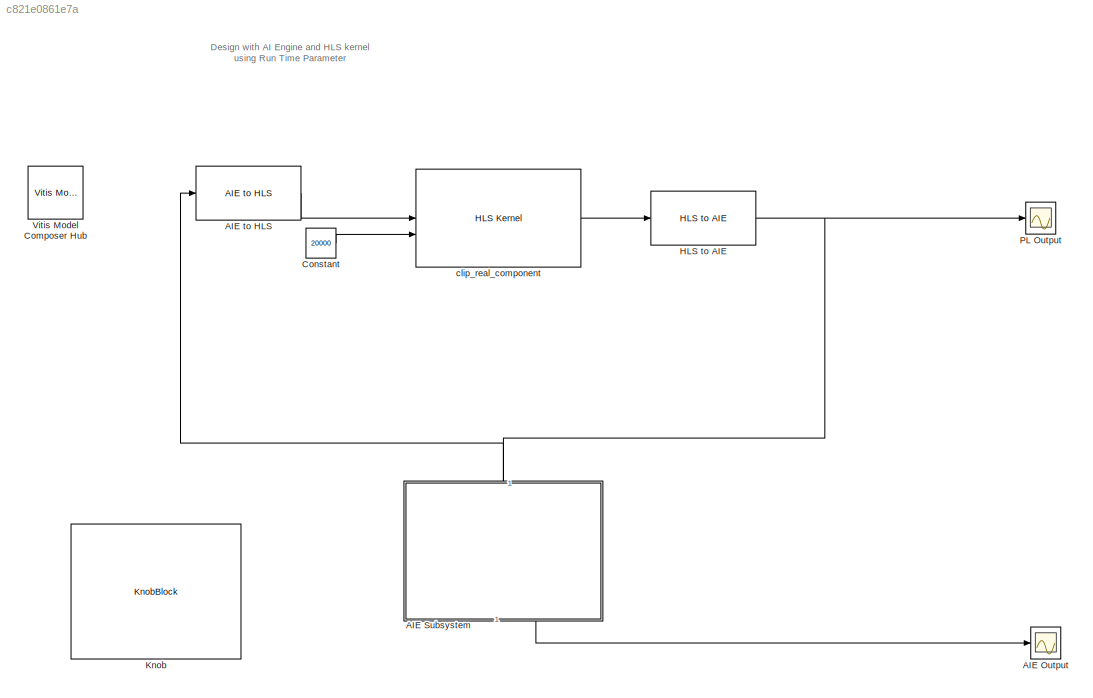
MODEL slx_c821e0861e7a
KIND model
CONFIG AbsTol = auto
CONFIG EnableMultiTasking = off
CONFIG FixedStep = auto
CONFIG InitFcn = load filter_coeffs.mat\nLPF = round(LPF * 2^15)
CONFIG MaxStep = auto
CONFIG MinStep = auto
CONFIG RelTol = 1e-3
CONFIG SampleTimeConstraint = Unconstrained
CONFIG SolverName = VariableStepAuto
CONFIG StartTime = 0.0
CONFIG StopTime = inf
BLOCK [Scope] AIE Output
  Floating = off
  NumInputPorts = 1
  ScopeSpecificationString = Simulink.scopes.TimeScopeBlockCfg('CurrentConfiguration', extmgr.ConfigurationSet(extmgr.Configuration('Core','General UI',true),extmgr.Configuration('Core','Source UI',true),extmgr.Configuration('Sources','WiredSimulink',true),extmgr.Configuration('Visuals','Time Domain',true,'InputProcessing','FrameProcessing','SerializedDisplays',{struct('MinYLimReal','-22685.00000','MaxYLimReal','22685.00000',...<+1704ch>
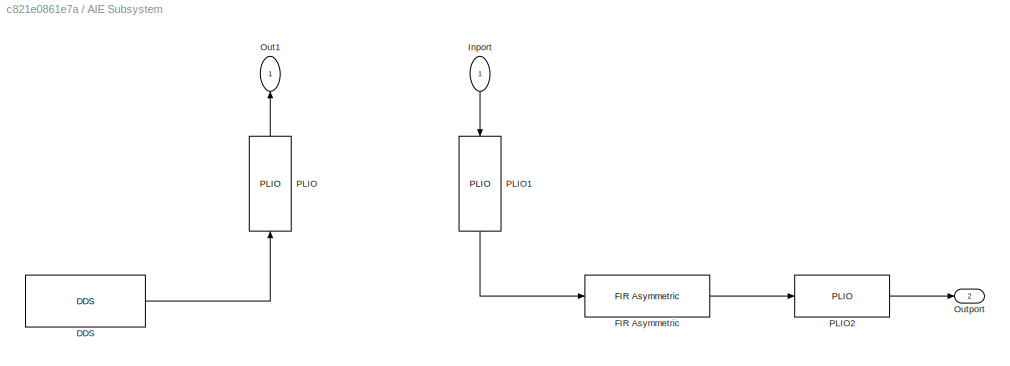
BLOCK [SubSystem] AIE Subsystem
  NameLocation = right
  PortSchema = {"entries":[{"content":{"sides":[{"content":{"connectorIds":["Out2"]},"type":"ConnectorPlacement.EquallySpacedRectSide","uuid":"600439e9-73c3-433c-a4a4-c36b72988664"},{"content":{"connectorIds":["Out1","In1"],"side":"RIGHT"},"type":"ConnectorPlacement.EquallySpacedRectSide","uuid":"c5ca9a85-0742-44d8-b50a-7698103ab251"},{"content":{"connectorIds":[],"side":"TOP"},"type":"ConnectorPlacement.Equally...<+391ch>
BLOCK [Reference] AIE Subsystem/DDS  REF=aieDSP/DDS
  SourceBlock = aieDSP/DDS
  SourceType = DDS
BLOCK [Reference] AIE Subsystem/FIR Asymmetric  REF=aieDSP/FIR Asymmetric
  SourceBlock = aieDSP/FIR Asymmetric
  SourceType = FIR Asymmetric
BLOCK [Inport] AIE Subsystem/Inport
  NameLocation = left
BLOCK [Outport] AIE Subsystem/Out1
  NameLocation = right
BLOCK [Outport] AIE Subsystem/Outport
  Port = 2
BLOCK [Reference] AIE Subsystem/PLIO  REF=aieBasic/PLIO
  NameLocation = right
  SourceBlock = aieBasic/PLIO
  SourceType = PLIO
BLOCK [Reference] AIE Subsystem/PLIO1  REF=aieBasic/PLIO
  NameLocation = left
  SourceBlock = aieBasic/PLIO
  SourceType = PLIO
BLOCK [Reference] AIE Subsystem/PLIO2  REF=aieBasic/PLIO
  SourceBlock = aieBasic/PLIO
  SourceType = PLIO
BLOCK [Reference] AIE to HLS  REF=aieUtilities/AIE to HLS
  SourceBlock = aieUtilities/AIE to HLS
  SourceType = AIE to HLS
BLOCK [Constant] Constant
  OutDataTypeStr = int32
  SampleTime = -1
  Value = 20000
BLOCK [Reference] HLS to AIE  REF=aieUtilities/HLS to AIE
  SourceBlock = aieUtilities/HLS to AIE
  SourceType = HLS to AIE
BLOCK [KnobBlock] Knob
  LabelPosition = Hide
  ScaleMax = 32767
  ScaleMin = 20000
BLOCK [Scope] PL Output
  Floating = off
  NumInputPorts = 1
  ScopeSpecificationString = Simulink.scopes.TimeScopeBlockCfg('CurrentConfiguration', extmgr.ConfigurationSet(extmgr.Configuration('Core','General UI',true),extmgr.Configuration('Core','Source UI',true),extmgr.Configuration('Sources','WiredSimulink',true,'DataLoggingVariableName','ScopeData1'),extmgr.Configuration('Visuals','Time Domain',true,'InputProcessing','FrameProcessing','SerializedDisplays',{struct('MinYLimReal','-40...<+1720ch>
BLOCK [Reference] Vitis Model Composer Hub  REF=vmcUtilities/Vitis Model Composer Hub
  SourceBlock = vmcUtilities/Vitis Model Composer Hub
  SourceType = VMC Hub
  Tag = genX
  UserDataPersistent = on
BLOCK [Reference] clip_real_component  REF=hlsBasic/HLS Kernel
  SourceBlock = hlsBasic/HLS Kernel
  SourceType = HLS Kernel Function
ANNOTATION (root): Design with AI Engine and HLS kernel using Run Time Parameter
LINE AIE Subsystem/DDS:1 -> AIE Subsystem/PLIO:1
LINE AIE Subsystem/FIR Asymmetric:1 -> AIE Subsystem/PLIO2:1
LINE AIE Subsystem/Inport:1 -> AIE Subsystem/PLIO1:1
LINE AIE Subsystem/PLIO1:1 -> AIE Subsystem/FIR Asymmetric:1
LINE AIE Subsystem/PLIO2:1 -> AIE Subsystem/Outport:1
LINE AIE Subsystem/PLIO:1 -> AIE Subsystem/Out1:1
LINE AIE Subsystem:1 -> AIE to HLS:1
LINE AIE Subsystem:2 -> AIE Output:1
LINE AIE to HLS:1 -> clip_real_component:1
LINE Constant:1 -> clip_real_component:2
NET HLS to AIE:1 -> AIE Subsystem:1, PL Output:1
LINE clip_real_component:1 -> HLS to AIE:1
note: NET lines group one-source signal fan-out (src -> all destinations, sorted); 1:1 wires keep LINE
